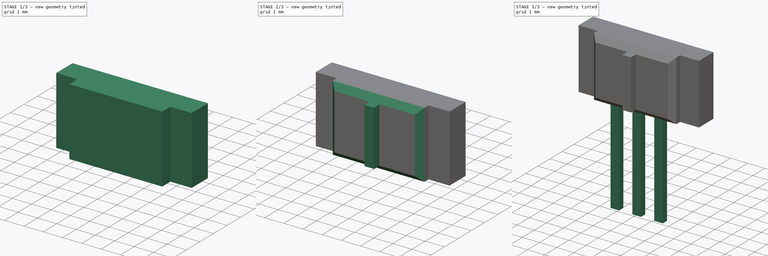
[diagram: build sequence overview — one tinted view per stage of 3, left to right]
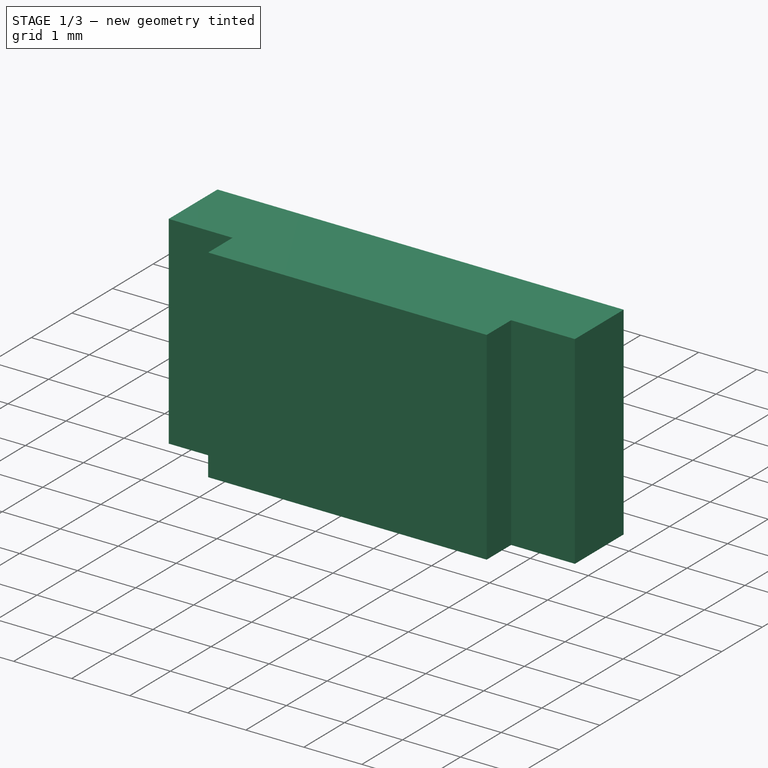
[diagram: stage 1 of 3 — iso view after this stage's code; geometry added in this stage tinted green]
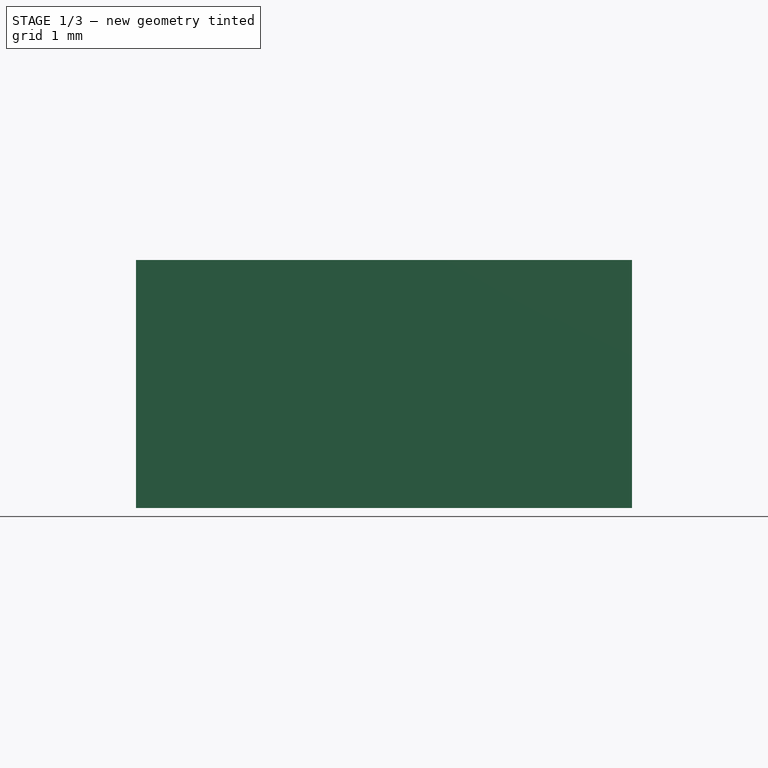
[diagram: stage 1 of 3 — front view after this stage's code; geometry added in this stage tinted green]
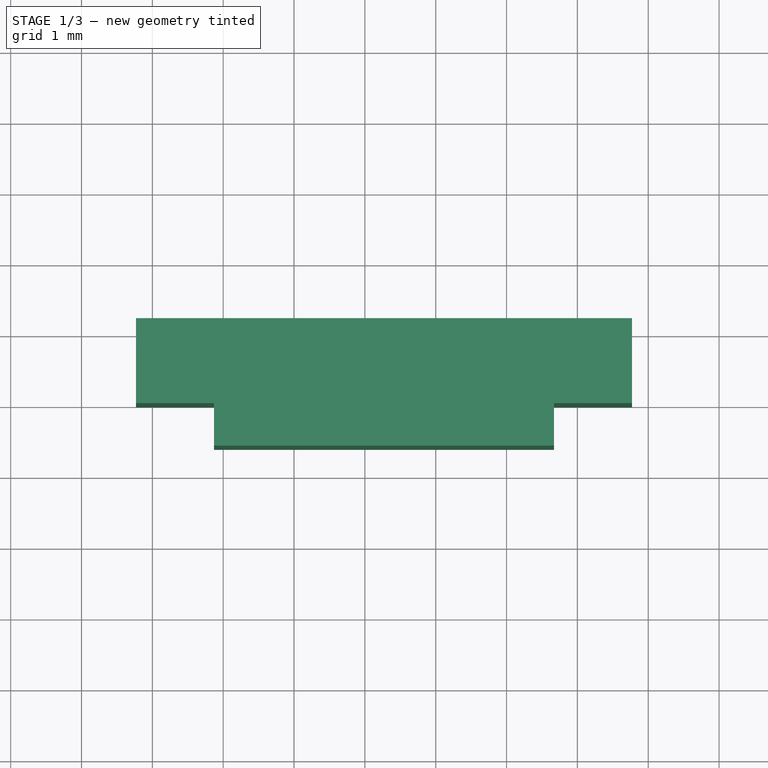
[diagram: stage 1 of 3 — top view after this stage's code; geometry added in this stage tinted green]
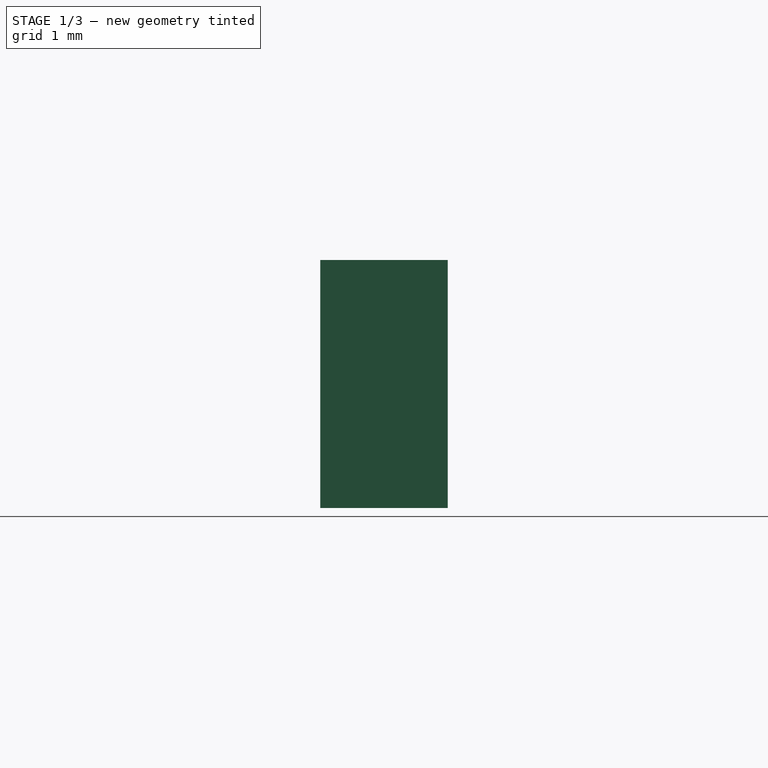
[diagram: stage 1 of 3 — right view after this stage's code; geometry added in this stage tinted green]
FCSTD DOCUMENT  (FreeCAD 0.16R6712 (Git))
Label: Siemens_SFH900
License: All rights reserved
LicenseURL: http://en.wikipedia.org/wiki/All_rights_reserved
objects: Sketcher::SketchObject×4, PartDesign::Pad×4, Part::Feature×3, PartDesign::Chamfer×1, Part::MultiFuse×1, App::DocumentObjectGroup×1
note: 17 computed .brp shape members not serialized (recipe doc carries the construction recipe); baked Part::Feature solids carry a one-line shape summary decoded from their .brp

FEATURE [Sketcher::SketchObject] Sketch001
  Placement = pos=(1.27,0,0) rot=(1,0,0;1.5708rad)
  sketch-geometry (5):
    g0: LineSegment StartX=-3.5 StartY=5 StartZ=0 EndX=3.5 EndY=5 EndZ=0
    g1: LineSegment StartX=3.5 StartY=5 StartZ=0 EndX=3.5 EndY=1.5 EndZ=0
    g2: LineSegment StartX=3.5 StartY=1.5 StartZ=0 EndX=-3.5 EndY=1.5 EndZ=0
    g3: LineSegment StartX=-3.5 StartY=1.5 StartZ=0 EndX=-3.5 EndY=5 EndZ=0
    g4: GeomPoint [constr] X=0 Y=1.5 Z=0
  constraints (14):
    c: Coincident(g0,g1)
    c: Coincident(g1,g2)
    c: Coincident(g2,g3)
    c: Coincident(g3,g0)
    c: Horizontal(g0)
    c: Horizontal(g2)
    c: Vertical(g1)
    c: Vertical(g3)
    c: DistanceX(g0,g0) = 7
    c: DistanceY(g1,g1) = 3.5
    c: PointOnObject(g4,g-2)
    c: PointOnObject(g4,g2)
    c: Symmetric(g2,g2,g4)
    c: DistanceY(g-1,g1) = 1.5
FEATURE [PartDesign::Pad] Pad001
  Length = 1.2
  Length2 = 100
  Placement = pos=(1.27,0,0) rot=(1,0,0;1.5708rad)
  Reversed = true
  Sketch = -> Sketch001
  Type = 0
FEATURE [Sketcher::SketchObject] Sketch002
  ExternalGeometry = -> [Pad001]
  Placement = pos=(1.27,0,0) rot=(1,0,0;1.5708rad)
  Support = -> Pad001 [Face5]
  sketch-geometry (5):
    g0: LineSegment StartX=-2.4 StartY=1.5 StartZ=0 EndX=2.4 EndY=1.5 EndZ=0
    g1: LineSegment StartX=2.4 StartY=1.5 StartZ=0 EndX=2.4 EndY=5 EndZ=0
    g2: LineSegment StartX=2.4 StartY=5 StartZ=0 EndX=-2.4 EndY=5 EndZ=0
    g3: LineSegment StartX=-2.4 StartY=5 StartZ=0 EndX=-2.4 EndY=1.5 EndZ=0
    g4: GeomPoint [constr] X=0 Y=5 Z=0
  constraints (14):
    c: Coincident(g0,g1)
    c: Coincident(g1,g2)
    c: Coincident(g2,g3)
    c: Coincident(g3,g0)
    c: Horizontal(g0)
    c: Horizontal(g2)
    c: Vertical(g1)
    c: Vertical(g3)
    c: PointOnObject(g0,g-3)
    c: PointOnObject(g4,g2)
    c: PointOnObject(g4,g-2)
    c: Symmetric(g2,g2,g4)
    c: PointOnObject(g2,g-5)
    c: DistanceX(g2,g1) = 4.8
FEATURE [PartDesign::Pad] Pad002
  Length = 0.6
  Length2 = 100
  Placement = pos=(1.27,0,0) rot=(1,0,0;1.5708rad)
  Sketch = -> Sketch002
  Type = 0
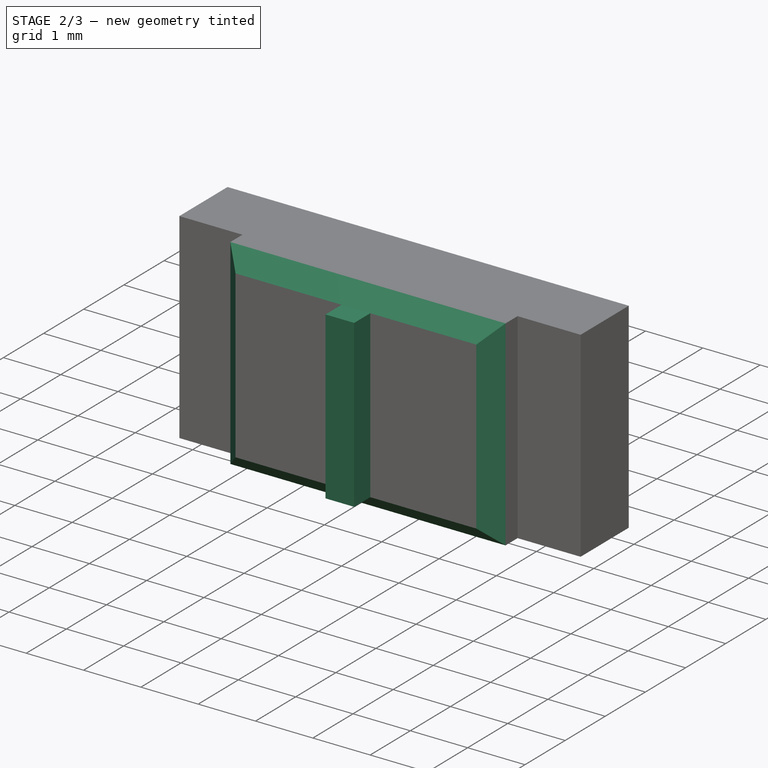
[diagram: stage 2 of 3 — iso view after this stage's code; geometry added in this stage tinted green]
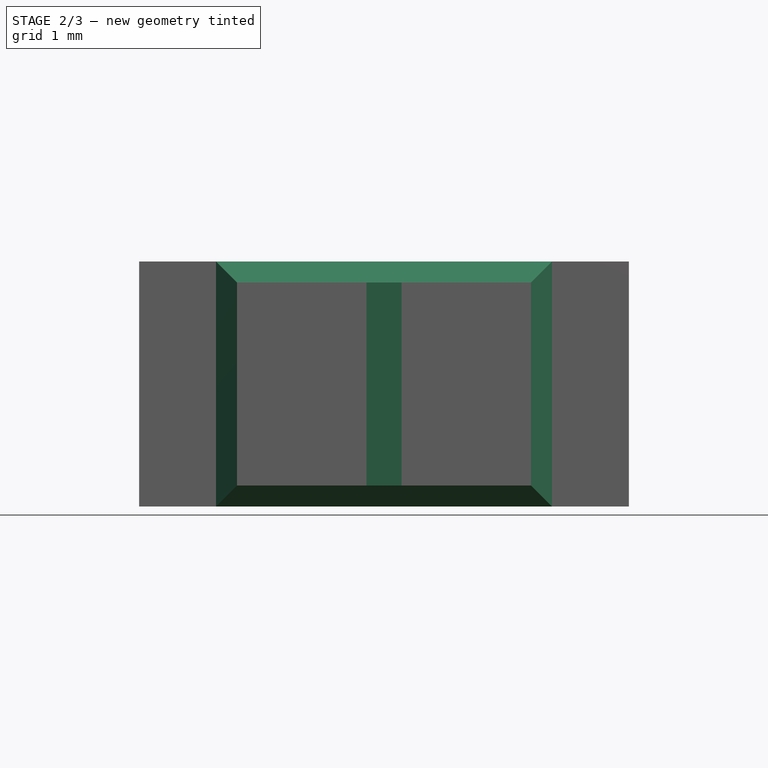
[diagram: stage 2 of 3 — front view after this stage's code; geometry added in this stage tinted green]
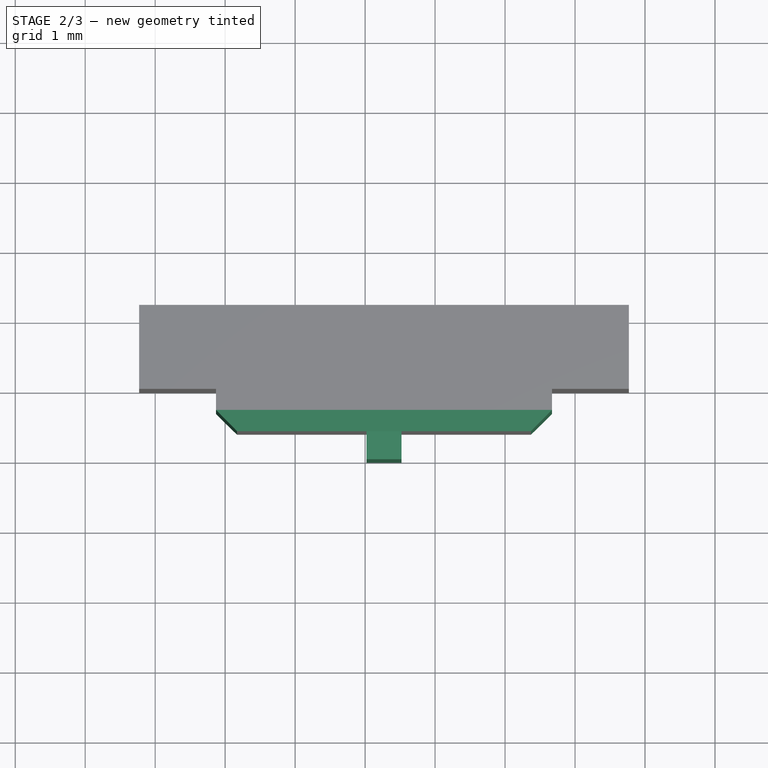
[diagram: stage 2 of 3 — top view after this stage's code; geometry added in this stage tinted green]
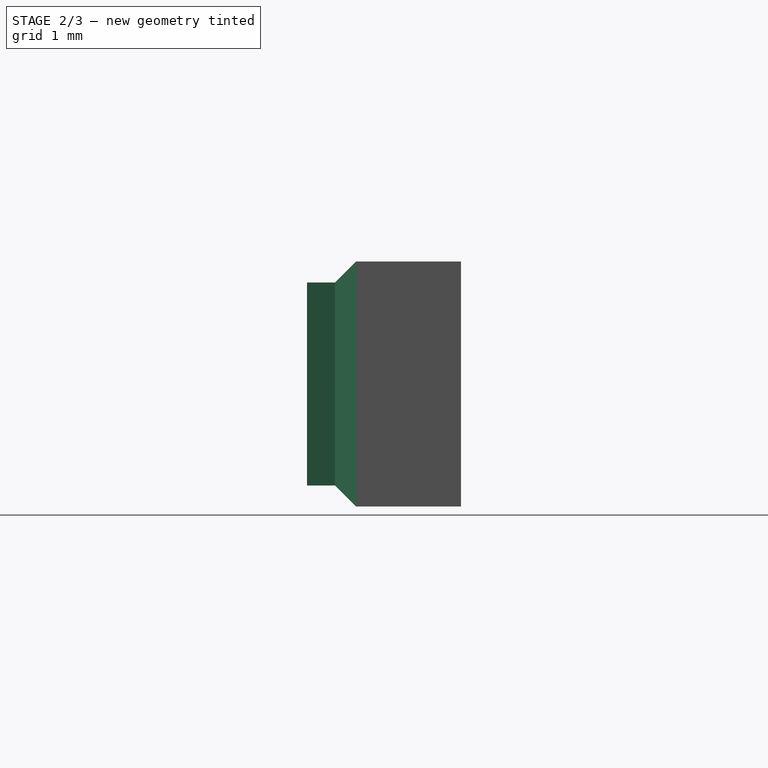
[diagram: stage 2 of 3 — right view after this stage's code; geometry added in this stage tinted green]
FEATURE [PartDesign::Chamfer] Chamfer
  Base = -> Pad002 [Edge23,Edge25,Edge20,Edge26]
  Placement = pos=(1.27,0,0) rot=(1,0,0;1.5708rad)
  Size = 0.3
FEATURE [Sketcher::SketchObject] Sketch003
  ExternalGeometry = -> [Chamfer]
  Placement = pos=(1.27,-0.6,0) rot=(1,0,0;1.5708rad)
  Support = -> Chamfer [Face9]
  sketch-geometry (5):
    g0: LineSegment StartX=-0.25 StartY=4.7 StartZ=0 EndX=0.25 EndY=4.7 EndZ=0
    g1: LineSegment StartX=0.25 StartY=4.7 StartZ=0 EndX=0.25 EndY=1.8 EndZ=0
    g2: LineSegment StartX=0.25 StartY=1.8 StartZ=0 EndX=-0.25 EndY=1.8 EndZ=0
    g3: LineSegment StartX=-0.25 StartY=1.8 StartZ=0 EndX=-0.25 EndY=4.7 EndZ=0
    g4: GeomPoint [constr] X=0 Y=4.7 Z=0
  constraints (14):
    c: Coincident(g0,g1)
    c: Coincident(g1,g2)
    c: Coincident(g2,g3)
    c: Coincident(g3,g0)
    c: Horizontal(g0)
    c: Horizontal(g2)
    c: Vertical(g1)
    c: Vertical(g3)
    c: PointOnObject(g1,g-4)
    c: DistanceX(g0,g0) = 0.5
    c: PointOnObject(g4,g0)
    c: Symmetric(g0,g0,g4)
    c: PointOnObject(g4,g-2)
    c: DistanceY(g0,g-3) = 0
FEATURE [PartDesign::Pad] Pad003
  Length = 0.4
  Length2 = 100
  Placement = pos=(1.27,0,0) rot=(1,0,0;1.5708rad)
  Sketch = -> Sketch003
  Type = 0
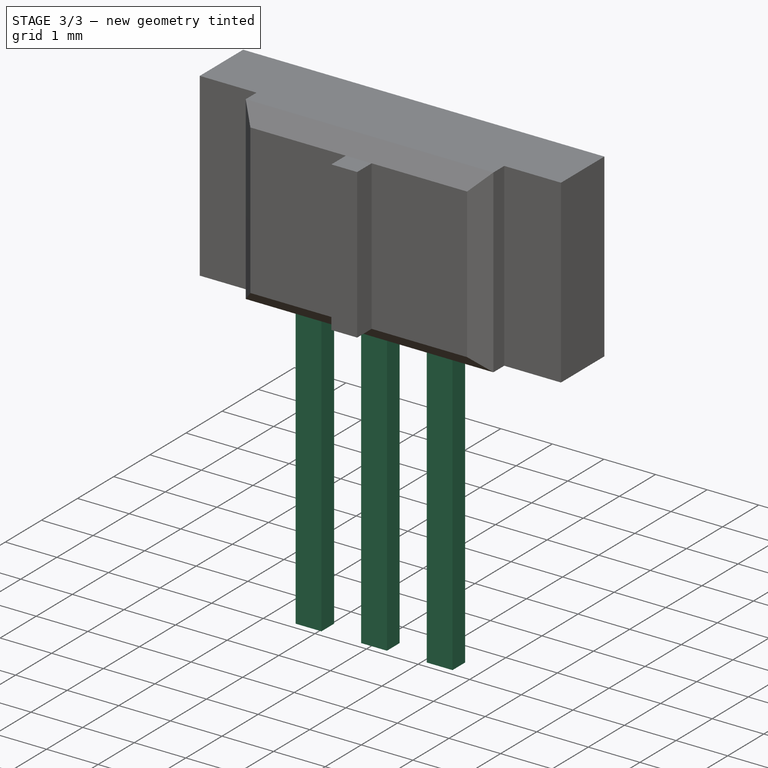
[diagram: stage 3 of 3 — iso view after this stage's code; geometry added in this stage tinted green]
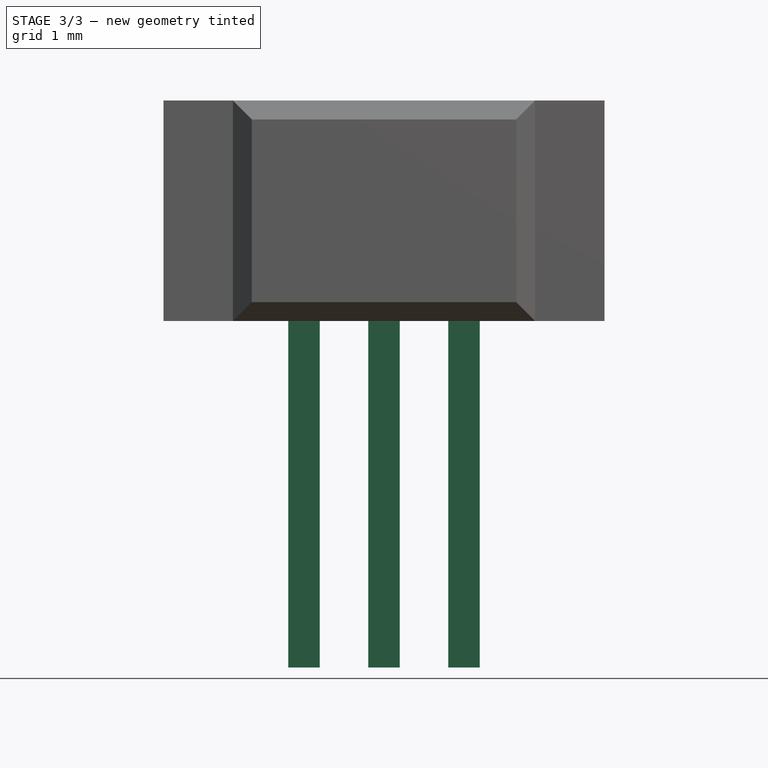
[diagram: stage 3 of 3 — front view after this stage's code; geometry added in this stage tinted green]
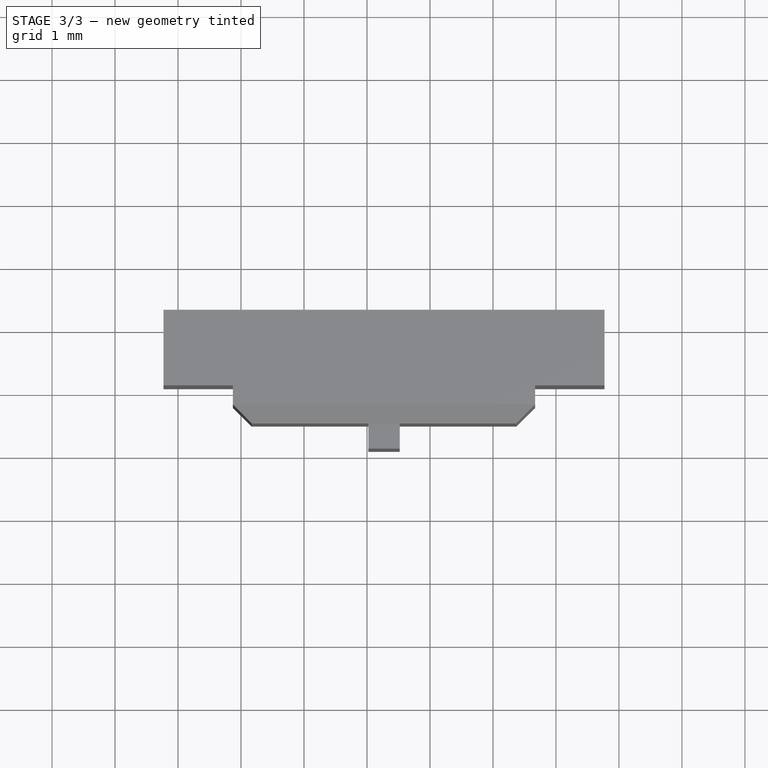
[diagram: stage 3 of 3 — top view after this stage's code; geometry added in this stage tinted green]
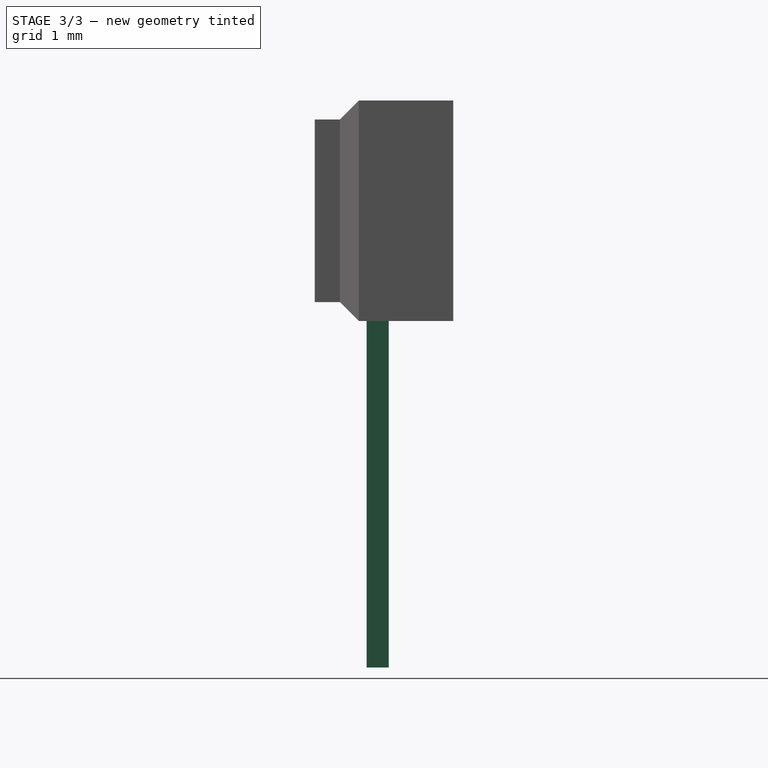
[diagram: stage 3 of 3 — right view after this stage's code; geometry added in this stage tinted green]
FEATURE [Sketcher::SketchObject] Sketch
  Placement = pos=(1.27,0,0) rot=(1,0,0;1.5708rad)
  sketch-geometry (13):
    g0: LineSegment StartX=-1.52 StartY=1.7 StartZ=0 EndX=-1.02 EndY=1.7 EndZ=0
    g1: LineSegment StartX=-1.02 StartY=1.7 StartZ=0 EndX=-1.02 EndY=-4 EndZ=0
    g2: LineSegment StartX=-1.02 StartY=-4 StartZ=0 EndX=-1.52 EndY=-4 EndZ=0
    g3: LineSegment StartX=-1.52 StartY=-4 StartZ=0 EndX=-1.52 EndY=1.7 EndZ=0
    g4: LineSegment StartX=-0.25 StartY=1.7 StartZ=0 EndX=0.25 EndY=1.7 EndZ=0
    g5: LineSegment StartX=0.25 StartY=1.7 StartZ=0 EndX=0.25 EndY=-4 EndZ=0
    g6: LineSegment StartX=0.25 StartY=-4 StartZ=0 EndX=-0.25 EndY=-4 EndZ=0
    g7: LineSegment StartX=-0.25 StartY=-4 StartZ=0 EndX=-0.25 EndY=1.7 EndZ=0
    g8: LineSegment StartX=1.02 StartY=1.7 StartZ=0 EndX=1.52 EndY=1.7 EndZ=0
    g9: LineSegment StartX=1.52 StartY=1.7 StartZ=0 EndX=1.52 EndY=-4 EndZ=0
    g10: LineSegment StartX=1.52 StartY=-4 StartZ=0 EndX=1.02 EndY=-4 EndZ=0
    g11: LineSegment StartX=1.02 StartY=-4 StartZ=0 EndX=1.02 EndY=1.7 EndZ=0
    g12: LineSegment [constr] StartX=-0.25 StartY=0 StartZ=0 EndX=0.25 EndY=0 EndZ=0
  constraints (40):
    c: Coincident(g0,g1)
    c: Coincident(g1,g2)
    c: Coincident(g2,g3)
    c: Coincident(g3,g0)
    c: Horizontal(g0)
    c: Horizontal(g2)
    c: Vertical(g1)
    c: Vertical(g3)
    c: Coincident(g4,g5)
    c: Coincident(g5,g6)
    c: Coincident(g6,g7)
    c: Coincident(g7,g4)
    c: Horizontal(g4)
    c: Horizontal(g6)
    c: Vertical(g5)
    c: Vertical(g7)
    c: Coincident(g8,g9)
    c: Coincident(g9,g10)
    c: Coincident(g10,g11)
    c: Coincident(g11,g8)
    c: Horizontal(g8)
    c: Horizontal(g10)
    c: Vertical(g9)
    c: Vertical(g11)
    c: Equal(g10,g6)
    c: Equal(g6,g2)
    c: Equal(g1,g7)
    c: Equal(g7,g11)
    c: DistanceY(g6,g1) = 0
    c: DistanceY(g5,g10) = 0
    c: PointOnObject(g12,g7)
    c: PointOnObject(g12,g5)
    c: Horizontal(g12)
    c: PointOnObject(g-1,g12)
    c: DistanceY(g5,g12) = 4
    c: DistanceX(g2,g2) = 0.5
    c: DistanceX(g0,g4) = 1.27
    c: Symmetric(g12,g12,g-1)
    c: DistanceY(g-1,g8) = 1.7
    c: DistanceX(g4,g8) = 1.27
FEATURE [PartDesign::Pad] Pad
  Length = 0.35
  Length2 = 100
  Midplane = true
  Placement = pos=(1.27,0,0) rot=(1,0,0;1.5708rad)
  Sketch = -> Sketch
  Type = 0
FEATURE [Part::MultiFuse] Pad003_mp_cp  label="Siemens_SFH900"
  Shapes = -> [Pad003,Pad]
FEATURE [Part::Feature] FusionAxisZ1  label="Z"
  shape: bbox 0.8 x 0.8 x 14 mm, 8 faces (baked)
FEATURE [Part::Feature] FusionAxisY1  label="Y"
  Placement = pos=(0,0,0.05) rot=(-1,0,0;1.5708rad)
  shape: bbox 0.8 x 14 x 0.8 mm, 8 faces (baked)
FEATURE [Part::Feature] FusionAxisX1  label="X"
  Placement = pos=(0,-0.05,0) rot=(0,1,0;1.5708rad)
  shape: bbox 14 x 0.8 x 0.8 mm, 8 faces (baked)
FEATURE [App::DocumentObjectGroup] axis
  Group = -> [FusionAxisZ1,FusionAxisY1,FusionAxisX1]
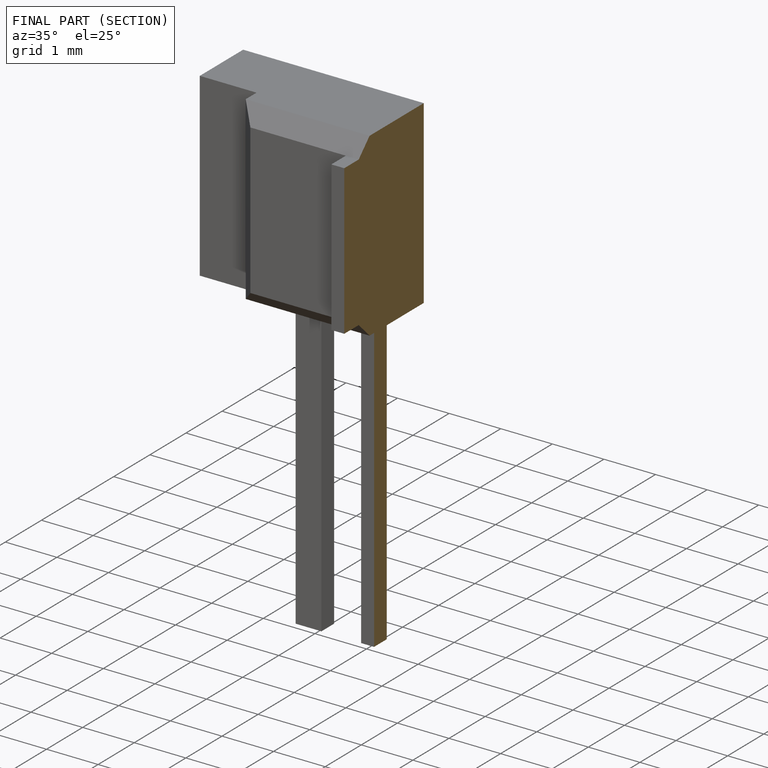
[diagram: finished part — half-section view (interior)]
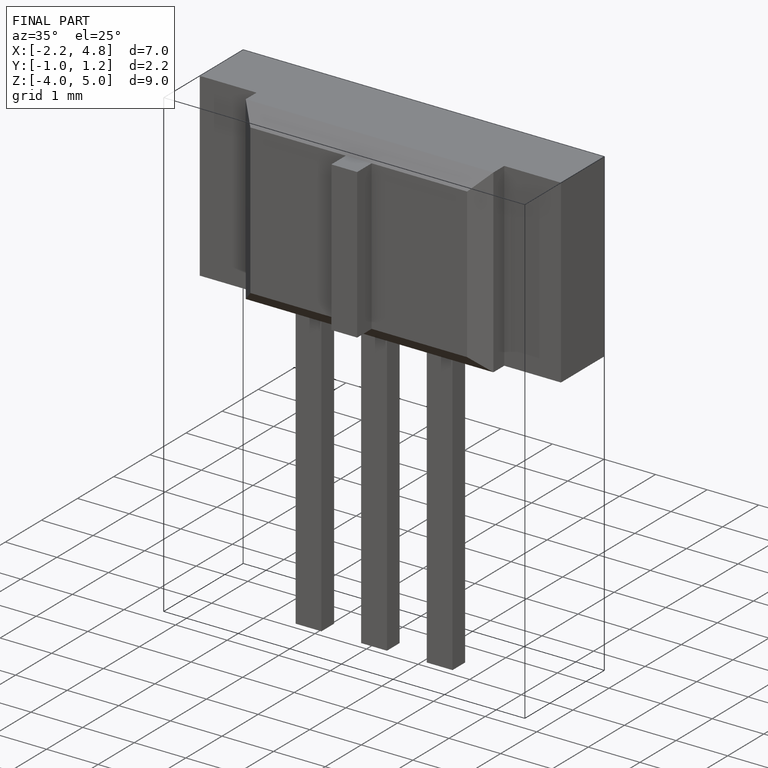
[diagram: finished part — iso view with bounding-box wireframe]
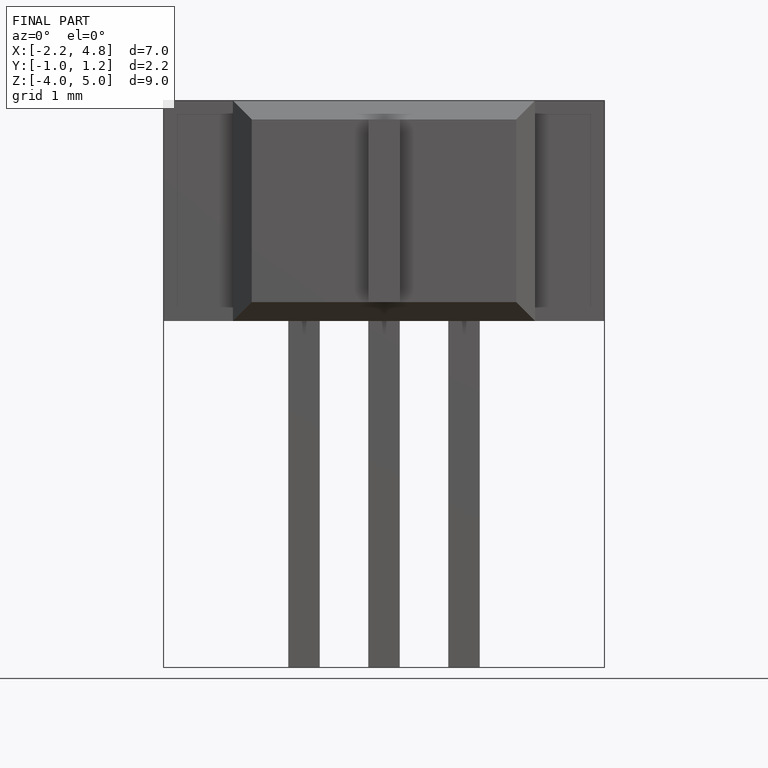
[diagram: finished part — front view with bounding-box wireframe]
